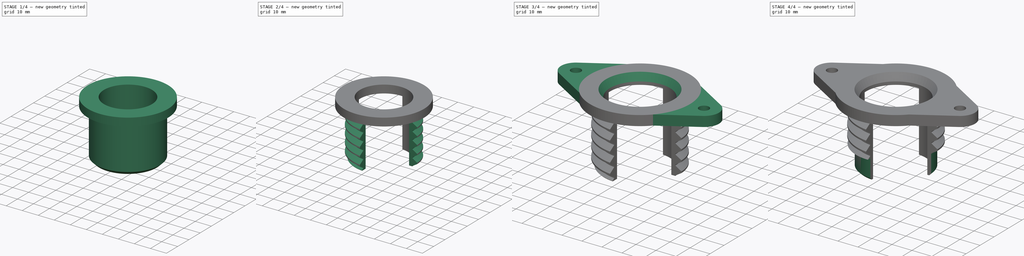
[diagram: build sequence overview — one tinted view per stage of 4, left to right]
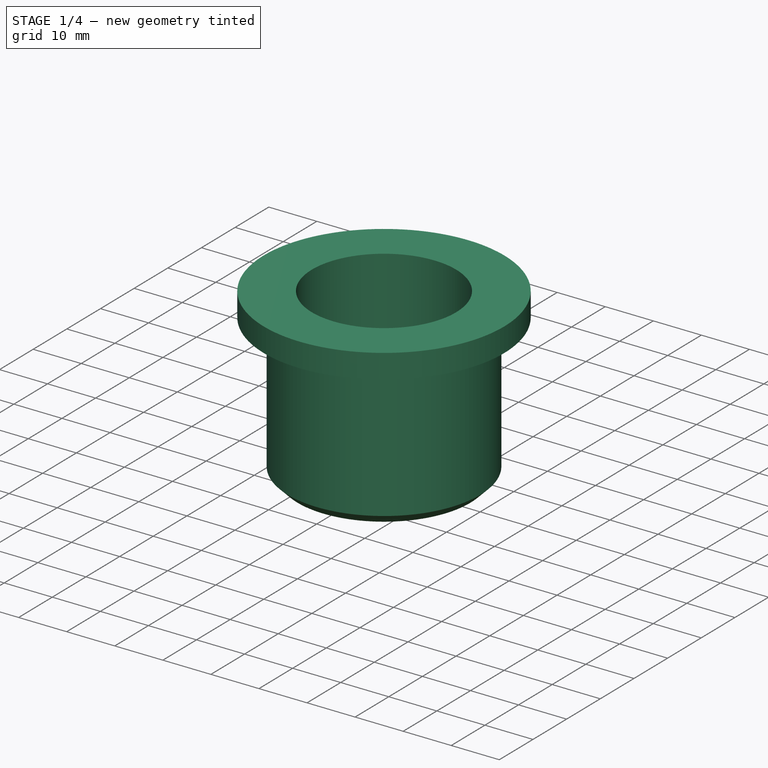
[diagram: stage 1 of 4 — iso view after this stage's code; geometry added in this stage tinted green]
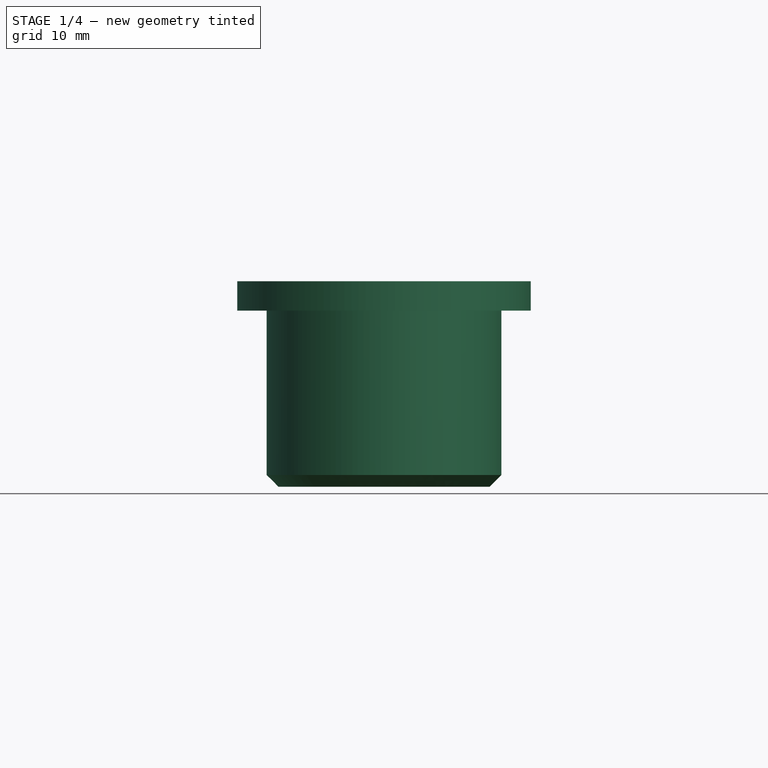
[diagram: stage 1 of 4 — front view after this stage's code; geometry added in this stage tinted green]
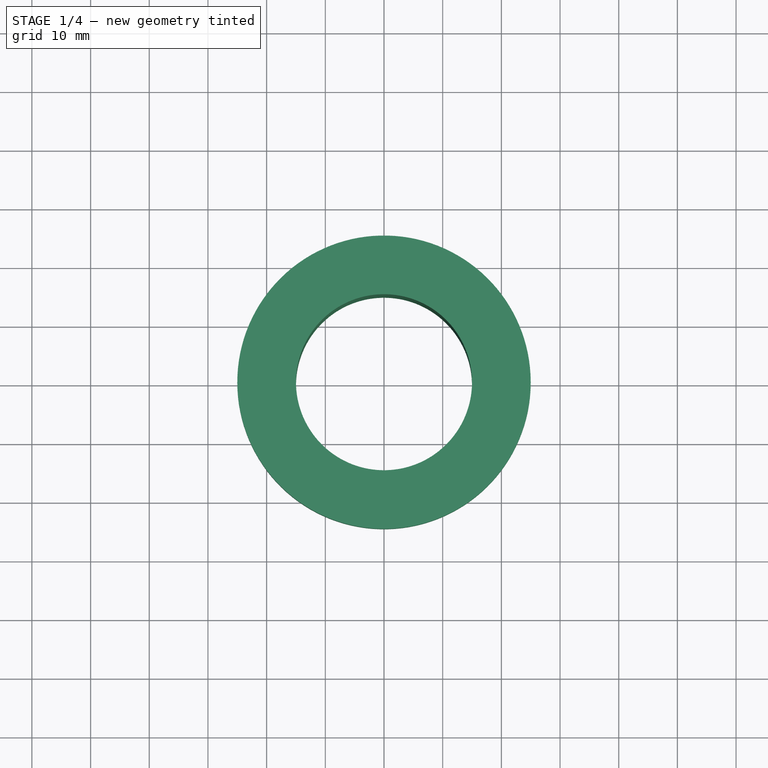
[diagram: stage 1 of 4 — top view after this stage's code; geometry added in this stage tinted green]
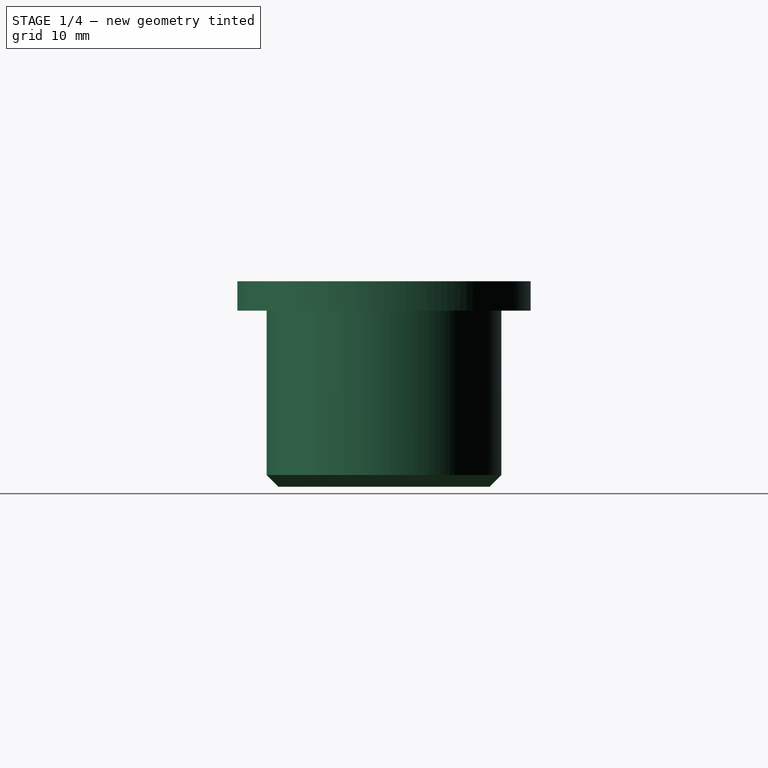
[diagram: stage 1 of 4 — right view after this stage's code; geometry added in this stage tinted green]
FCSTD DOCUMENT  (FreeCAD 2020.11.29R23076 +2859 (Git))
Label: noga-dol
License: All rights reserved
LicenseURL: http://en.wikipedia.org/wiki/All_rights_reserved
objects: Sketcher::SketchObject×6, PartDesign::Chamfer×3, PartDesign::Pocket×3, PartDesign::Revolution×1, Part::Helix×1, PartDesign::ShapeBinder×1, PartDesign::SubtractivePipe×1, PartDesign::PolarPattern×1, PartDesign::Pad×1, PartDesign::Body×1
note: 38 computed .brp shape members not serialized (recipe doc carries the construction recipe); baked Part::Feature solids carry a one-line shape summary decoded from their .brp

FEATURE [Sketcher::SketchObject] Sketch
  MapMode = 5
  Placement = pos=(0,0,0) rot=(1,0,0;1.5708rad)
  Support = -> [XZ_Plane]
  sketch-geometry (6):
    g0: LineSegment StartX=15 StartY=0 StartZ=0 EndX=25 EndY=0 EndZ=0
    g1: LineSegment StartX=25 StartY=0 StartZ=0 EndX=25 EndY=-5 EndZ=0
    g2: LineSegment StartX=25 StartY=-5 StartZ=0 EndX=20 EndY=-5 EndZ=0
    g3: LineSegment StartX=20 StartY=-5 StartZ=0 EndX=20 EndY=-35 EndZ=0
    g4: LineSegment StartX=20 StartY=-35 StartZ=0 EndX=15 EndY=-35 EndZ=0
    g5: LineSegment StartX=15 StartY=-35 StartZ=0 EndX=15 EndY=0 EndZ=0
  constraints (18):
    c: Horizontal(g0)
    c: Coincident(g0,g1)
    c: Coincident(g1,g2)
    c: Coincident(g2,g3)
    c: Vertical(g3)
    c: Coincident(g3,g4)
    c: Horizontal(g4)
    c: Coincident(g4,g5)
    c: Vertical(g5)
    c: Coincident(g0,g5)
    c: DistanceX(g0) = 15
    c: DistanceX(g0) = 25
    c: Vertical(g1)
    c: DistanceX(g2) = 20
    c: Horizontal(g2)
    c: DistanceY(g2) = -5
    c: DistanceY(g4) = -35
    c: PointOnObject(g0,g-1)
FEATURE [PartDesign::Revolution] Revolution
  Angle = 360
  Axis = (0,-2e-16,1)
  Base = (0,0,0)
  ClaimChildren = false
  Fit = 0
  FitJoin = 0
  InnerFit = 0
  InnerFitJoin = 0
  NewSolid = false
  Placement = pos=(0,0,0) rot=(1,0,0;1.5708rad)
  Profile = -> Sketch
  ReferenceAxis = -> Sketch [V_Axis]
  Reversed = true
  Suppress = false
FEATURE [Part::Helix] Helix  label="Helisa"
  Angle = 0
  AttacherType = Attacher::AttachEngine3D
  Height = 35
  LocalCoord = 1
  Pitch = 5
  Placement = pos=(0,0,-40) rot=(0,0,1;0rad)
  Radius = 20
  Style = 1
FEATURE [Sketcher::SketchObject] Sketch001
  MapMode = 5
  Placement = pos=(0,0,0) rot=(1,0,0;1.5708rad)
  Support = -> [XZ_Plane]
  sketch-geometry (5):
    g0: LineSegment StartX=20.2 StartY=-22.75 StartZ=0 EndX=17 EndY=-24.75 EndZ=0
    g1: LineSegment StartX=17 StartY=-25.25 StartZ=0 EndX=20.2 EndY=-27.25 EndZ=0
    g2: LineSegment StartX=20.2 StartY=-27.25 StartZ=0 EndX=20.2 EndY=-22.75 EndZ=0
    g3: LineSegment StartX=17 StartY=-24.75 StartZ=0 EndX=17 EndY=-25.25 EndZ=0
    g4: GeomPoint X=17 Y=-25 Z=0
  constraints (14):
    c: Coincident(g1,g2)
    c: Coincident(g2,g0)
    c: Vertical(g2)
    c: Equal(g0,g1)
    c: DistanceX(g0) = 20.2
    c: DistanceY(g2,g2) = 4.5
    c: Vertical(g3)
    c: Coincident(g0,g3)
    c: Coincident(g1,g3)
    c: DistanceY(g3,g3) = 0.5
    c: PointOnObject(g4,g3)
    c: DistanceY(g4,g0) = 0.25
    c: DistanceX(g4) = 17
    c: DistanceY(g4) = -25
FEATURE [PartDesign::ShapeBinder] ReferenceHelix
  Placement = pos=(0,0,-40) rot=(0,0,1;0rad)
  Support = -> [Helix]
  TraceSupport = false
FEATURE [PartDesign::Chamfer] Chamfer
  Angle = 45
  Base = -> Revolution [Edge6]
  BaseFeature = -> Revolution
  ChamferType = 0
  FlipDirection = false
  NewSolid = false
  Placement = pos=(0,0,0) rot=(1,0,0;1.5708rad)
  Size = 2
  Size2 = 1
  SupportTransform = false
  Suppress = false
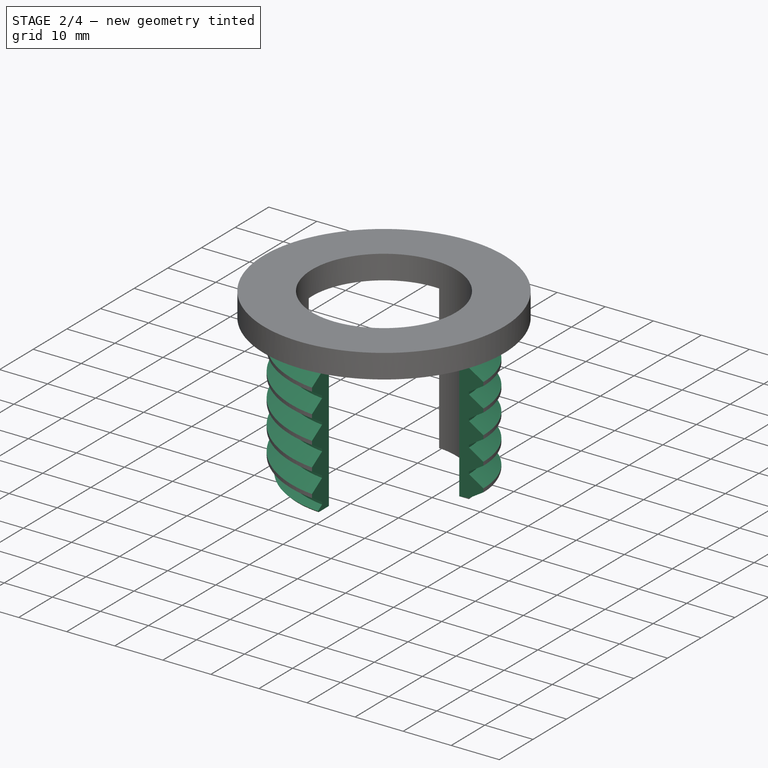
[diagram: stage 2 of 4 — iso view after this stage's code; geometry added in this stage tinted green]
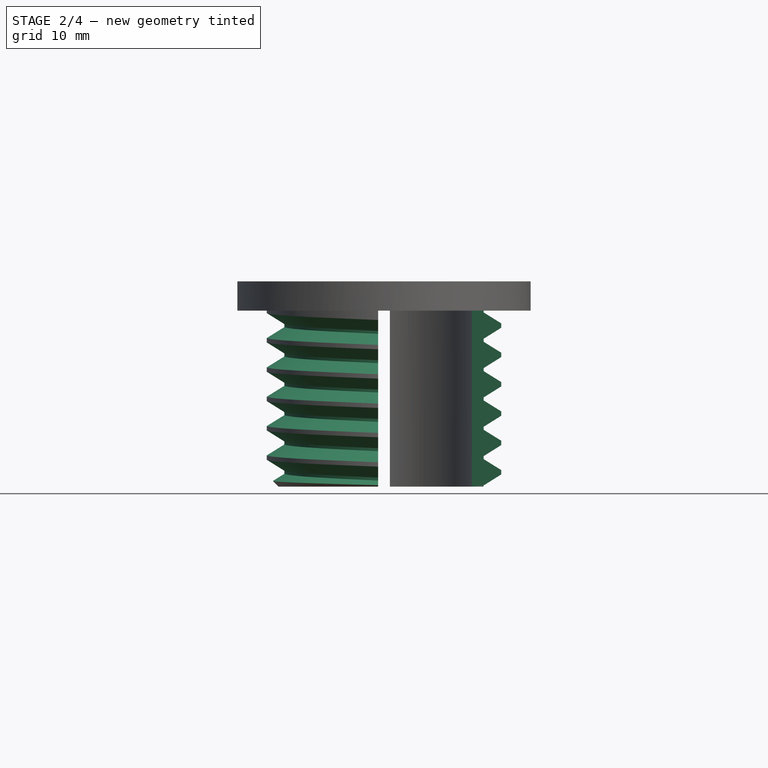
[diagram: stage 2 of 4 — front view after this stage's code; geometry added in this stage tinted green]
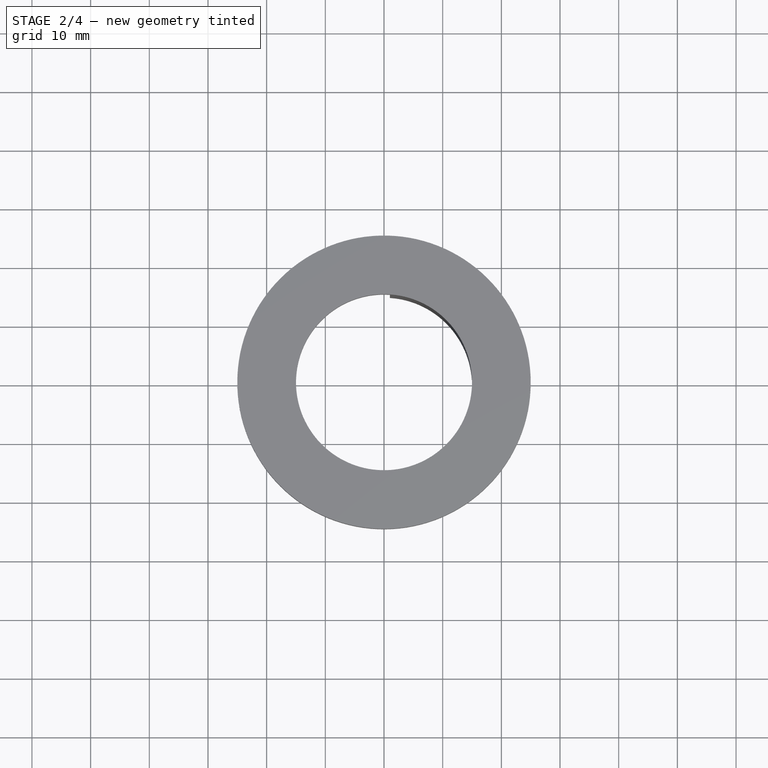
[diagram: stage 2 of 4 — top view after this stage's code; geometry added in this stage tinted green]
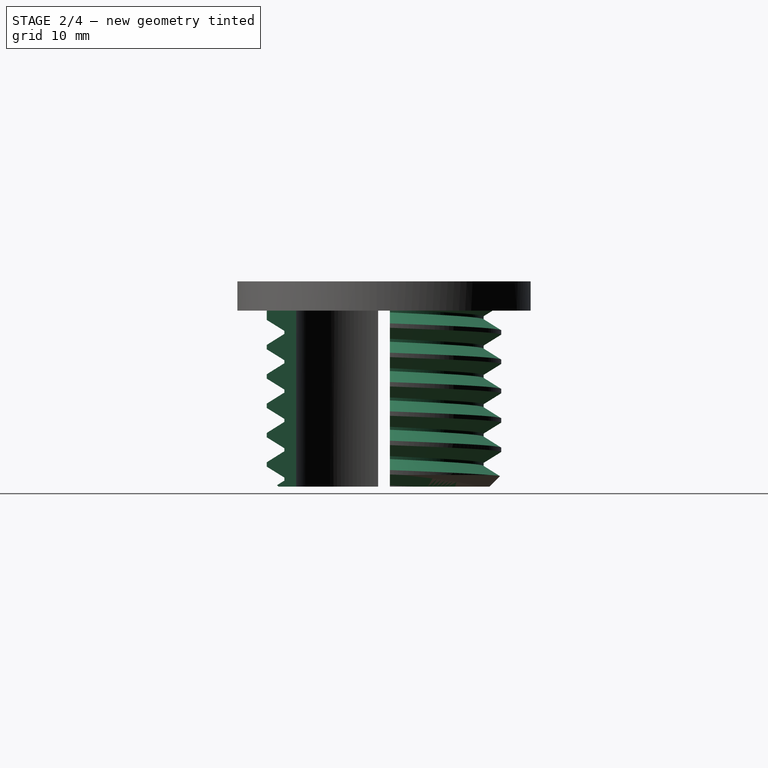
[diagram: stage 2 of 4 — right view after this stage's code; geometry added in this stage tinted green]
FEATURE [PartDesign::SubtractivePipe] SubtractivePipe
  AuxilleryCurvelinear = true
  AuxillerySpineTangent = false
  BaseFeature = -> Chamfer
  Binormal = (0,0,0)
  ClaimChildren = false
  Fit = 0
  FitJoin = 0
  InnerFit = 0
  InnerFitJoin = 0
  Mode = 2
  NewSolid = false
  Placement = pos=(0,0,0) rot=(1,0,0;1.5708rad)
  Profile = -> Sketch001
  Spine = -> ReferenceHelix
  SpineTangent = false
  Suppress = false
  Transformation = 0
  Transition = 0
FEATURE [Sketcher::SketchObject] Sketch002
  MapMode = 5
  Placement = pos=(0,0,-35) rot=(1,0,0;3.14159rad)
  Support = -> [SubtractivePipe]
  sketch-geometry (4):
    g0: LineSegment StartX=-1 StartY=-1 StartZ=0 EndX=29 EndY=-1 EndZ=0
    g1: LineSegment StartX=29 StartY=-1 StartZ=0 EndX=29 EndY=29 EndZ=0
    g2: LineSegment StartX=29 StartY=29 StartZ=0 EndX=-1 EndY=29 EndZ=0
    g3: LineSegment StartX=-1 StartY=29 StartZ=0 EndX=-1 EndY=-1 EndZ=0
  constraints (12):
    c: Coincident(g0,g1)
    c: Coincident(g1,g2)
    c: Coincident(g2,g3)
    c: Coincident(g3,g0)
    c: Horizontal(g0)
    c: Horizontal(g2)
    c: Vertical(g1)
    c: Vertical(g3)
    c: DistanceX(g0) = -1
    c: DistanceY(g0) = -1
    c: DistanceX(g0,g0) = 30
    c: DistanceY(g1,g1) = 30
FEATURE [PartDesign::Pocket] Pocket
  BaseFeature = -> SubtractivePipe
  ClaimChildren = false
  Fit = 0
  FitJoin = 0
  InnerFit = 0
  InnerFitJoin = 0
  InnerTaperAngle = 0
  InnerTaperAngleRev = 0
  Length = 30
  Length2 = 100
  NewSolid = false
  Placement = pos=(0,0,0) rot=(1,0,0;1.5708rad)
  Profile = -> Sketch002
  Suppress = false
  Type = 0
FEATURE [PartDesign::PolarPattern] PolarPattern
  Angle = 360
  Axis = -> Z_Axis
  BaseFeature = -> Pocket
  CopyShape = false
  NewSolid = false
  Occurrences = 2
  Placement = pos=(0,0,0) rot=(1,0,0;1.5708rad)
  SubTransform = true
  Suppress = false
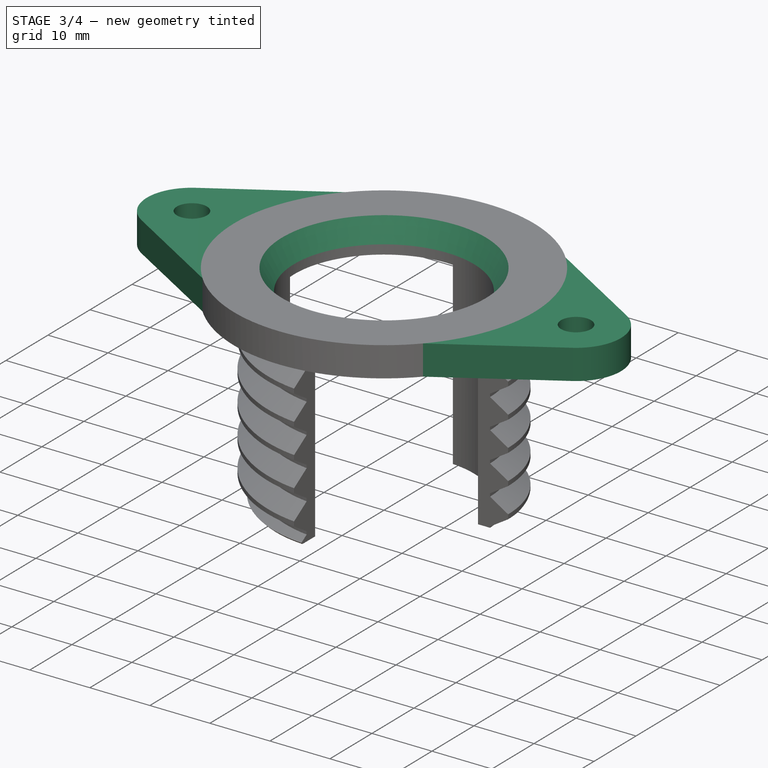
[diagram: stage 3 of 4 — iso view after this stage's code; geometry added in this stage tinted green]
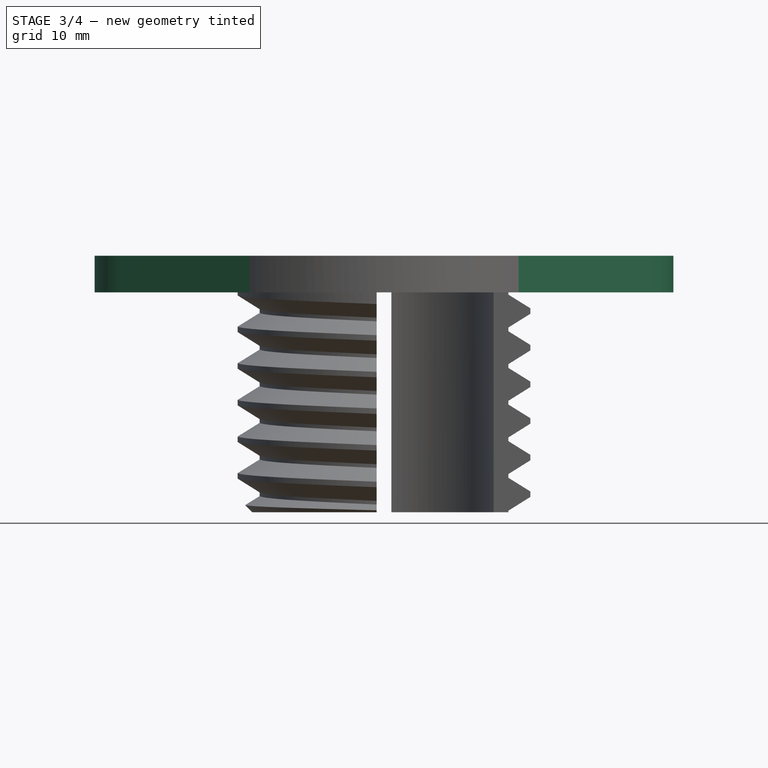
[diagram: stage 3 of 4 — front view after this stage's code; geometry added in this stage tinted green]
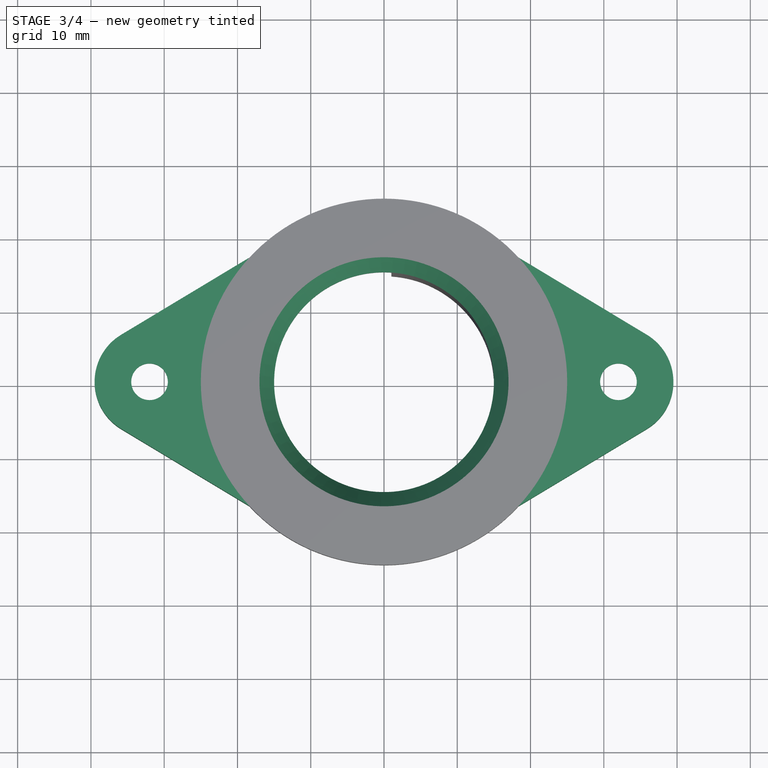
[diagram: stage 3 of 4 — top view after this stage's code; geometry added in this stage tinted green]
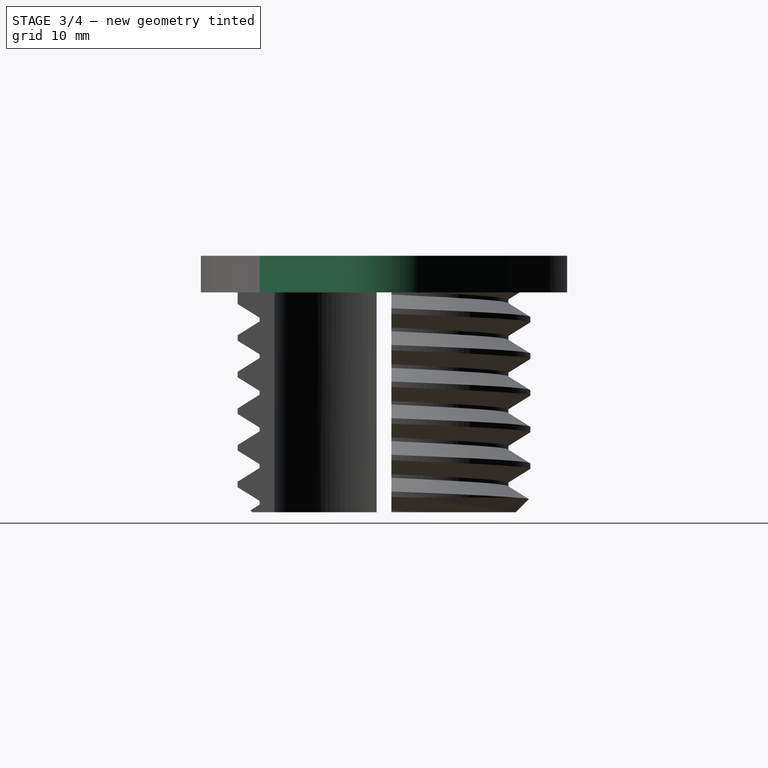
[diagram: stage 3 of 4 — right view after this stage's code; geometry added in this stage tinted green]
FEATURE [Sketcher::SketchObject] Sketch003
  MapMode = 5
  Placement = pos=(0,0,0) rot=(0,0,1;3.14159rad)
  Support = -> [PolarPattern]
  sketch-geometry (11):
    g0: ArcOfCircle CenterX=0 CenterY=0 CenterZ=0 NormalX=0 NormalY=0 NormalZ=1 AngleXU=0 Radius=24 StartAngle=1.02906 EndAngle=2.11253
    g1: ArcOfCircle CenterX=-32 CenterY=0 CenterZ=0 NormalX=0 NormalY=0 NormalZ=1 AngleXU=0 Radius=7.5 StartAngle=2.11253 EndAngle=4.17065
    g2: Circle CenterX=-32 CenterY=0 CenterZ=0 NormalX=0 NormalY=0 NormalZ=1 AngleXU=0 Radius=2.5
    g3: Circle CenterX=32 CenterY=0 CenterZ=0 NormalX=0 NormalY=0 NormalZ=1 AngleXU=0 Radius=2.5
    g4: LineSegment StartX=-35.8672 StartY=6.42612 StartZ=0 EndX=-12.375 EndY=20.5636 EndZ=0
    g5: LineSegment StartX=-35.8672 StartY=-6.42612 StartZ=0 EndX=-12.375 EndY=-20.5636 EndZ=0
    g6: LineSegment StartX=35.8672 StartY=6.42611 StartZ=0 EndX=12.375 EndY=20.5636 EndZ=0
    g7: LineSegment StartX=35.8672 StartY=-6.42611 StartZ=0 EndX=12.375 EndY=-20.5636 EndZ=0
    g8: ArcOfCircle CenterX=0 CenterY=0 CenterZ=0 NormalX=0 NormalY=0 NormalZ=1 AngleXU=0 Radius=24 StartAngle=4.17065 EndAngle=5.25412
    g9: ArcOfCircle CenterX=32 CenterY=0 CenterZ=0 NormalX=0 NormalY=0 NormalZ=1 AngleXU=0 Radius=7.5 StartAngle=5.25413 EndAngle=7.31224
    g10: Circle CenterX=0 CenterY=0 CenterZ=0 NormalX=0 NormalY=0 NormalZ=1 AngleXU=0 Radius=21
  constraints (29):
    c: Coincident(g0,g-1)
    c: Diameter(g0) = 48
    c: PointOnObject(g1,g-1)
    c: Coincident(g2,g1)
    c: Symmetric(g1,g3,g-2)
    c: DistanceX(g1) = -32
    c: Diameter(g3) = 5
    c: Tangent(g4,g0)
    c: Tangent(g7,g0)
    c: Tangent(g0,g5)
    c: Tangent(g6,g0)
    c: Tangent(g1,g4)
    c: Tangent(g5,g1)
    c: Equal(g3,g2)
    c: Coincident(g0,g6)
    c: Coincident(g8,g7)
    c: Coincident(g8,g5)
    c: Coincident(g0,g8)
    c: Coincident(g0,g4)
    c: Coincident(g1,g4)
    c: Coincident(g1,g5)
    c: Coincident(g9,g3)
    c: Tangent(g9,g7) = 1.5708
    c: Tangent(g9,g6) = -1.5708
    c: Radius(g9) = 7.5
    c: Equal(g1,g9)
    c: Equal(g8,g0)
    c: Coincident(g10,g0)
    c: Diameter(g10) = 42
FEATURE [PartDesign::Pad] Pad
  BaseFeature = -> PolarPattern
  ClaimChildren = false
  Direction = (1,1,1)
  Fit = 0
  FitJoin = 0
  InnerFit = 0
  InnerFitJoin = 0
  InnerTaperAngle = 0
  InnerTaperAngleRev = 0
  Length = 5
  Length2 = 100
  NewSolid = false
  Placement = pos=(0,0,0) rot=(1,0,0;1.5708rad)
  Profile = -> Sketch003
  Reversed = true
  Suppress = false
  Type = 0
FEATURE [PartDesign::Chamfer] Chamfer001
  Angle = 60
  Base = -> Pad [Edge67]
  BaseFeature = -> Pad
  ChamferType = 2
  FlipDirection = true
  NewSolid = false
  Placement = pos=(0,0,0) rot=(1,0,0;1.5708rad)
  Size = 2
  Size2 = 1
  SupportTransform = false
  Suppress = false
FEATURE [Sketcher::SketchObject] Sketch004
  MapMode = 5
  Placement = pos=(0,0,-5) rot=(1,0,0;3.14159rad)
  Support = -> [Chamfer001]
  sketch-geometry (2):
    g0: Circle CenterX=-32 CenterY=0 CenterZ=0 NormalX=0 NormalY=0 NormalZ=1 AngleXU=0 Radius=5
    g1: Circle CenterX=32 CenterY=0 CenterZ=0 NormalX=0 NormalY=0 NormalZ=1 AngleXU=0 Radius=5
  constraints (6):
    c: PointOnObject(g0,g-1)
    c: PointOnObject(g1,g-1)
    c: DistanceX(g1) = 32
    c: DistanceX(g0) = -32
    c: Diameter(g0) = 10
    c: Equal(g1,g0)
FEATURE [PartDesign::Pocket] Pocket001
  BaseFeature = -> Chamfer001
  ClaimChildren = false
  Fit = 0
  FitJoin = 0
  InnerFit = 0
  InnerFitJoin = 0
  InnerTaperAngle = 0
  InnerTaperAngleRev = 0
  Length = 3
  Length2 = 100
  NewSolid = false
  Placement = pos=(0,0,0) rot=(1,0,0;1.5708rad)
  Profile = -> Sketch004
  Suppress = false
  Type = 0
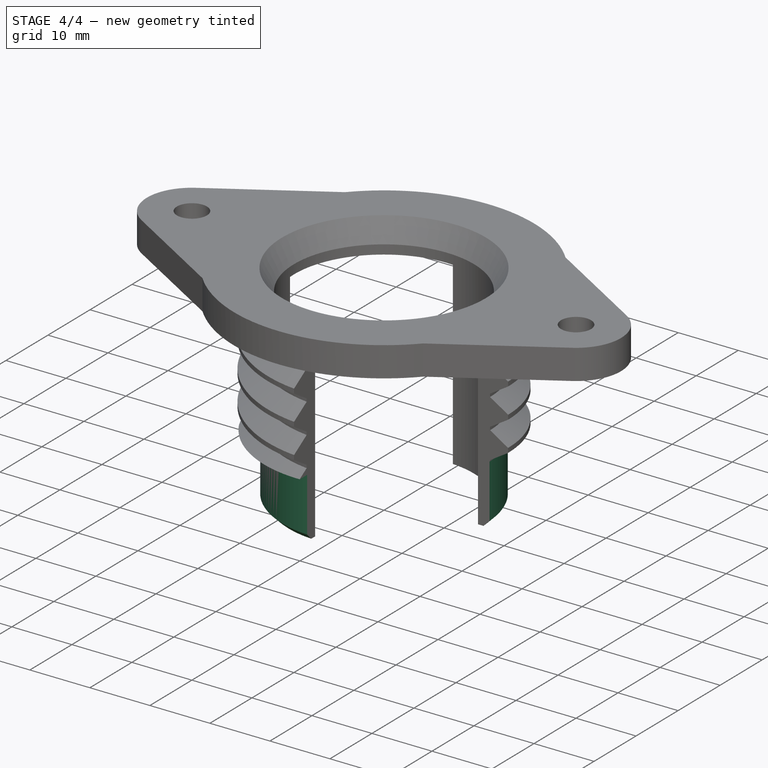
[diagram: stage 4 of 4 — iso view after this stage's code; geometry added in this stage tinted green]
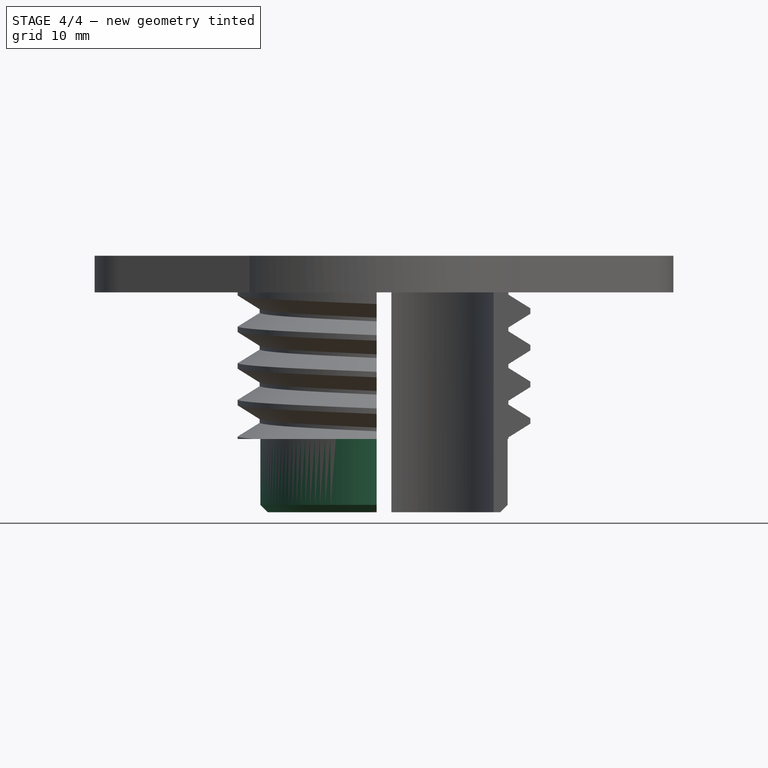
[diagram: stage 4 of 4 — front view after this stage's code; geometry added in this stage tinted green]
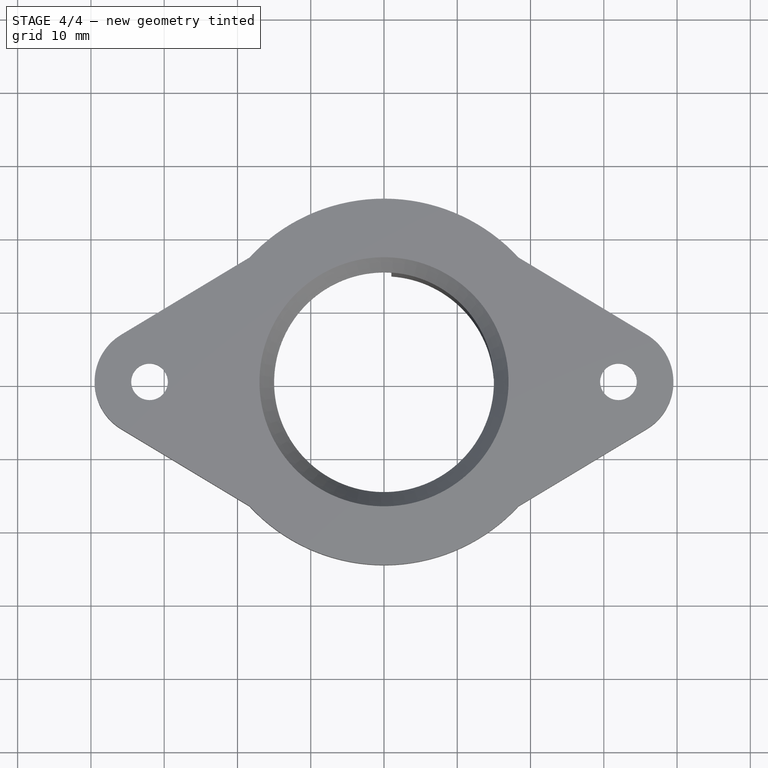
[diagram: stage 4 of 4 — top view after this stage's code; geometry added in this stage tinted green]
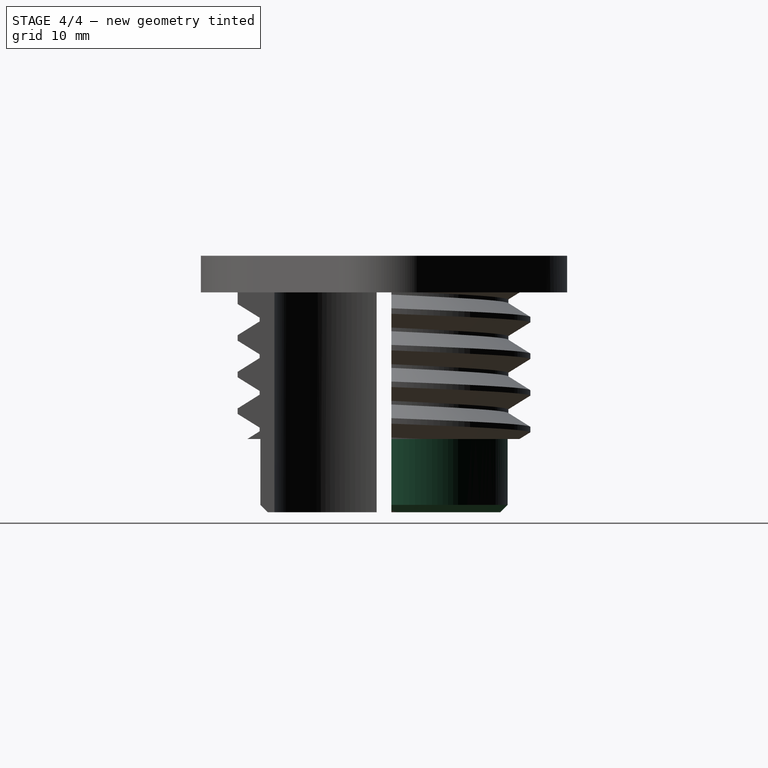
[diagram: stage 4 of 4 — right view after this stage's code; geometry added in this stage tinted green]
FEATURE [Sketcher::SketchObject] Sketch005
  MapMode = 5
  Placement = pos=(0,0,-35) rot=(1,0,0;3.14159rad)
  Support = -> [Pocket001]
  sketch-geometry (2):
    g0: Circle CenterX=0 CenterY=0 CenterZ=0 NormalX=0 NormalY=0 NormalZ=1 AngleXU=0 Radius=16.9
    g1: Circle CenterX=0 CenterY=0 CenterZ=0 NormalX=0 NormalY=0 NormalZ=1 AngleXU=0 Radius=25
  constraints (4):
    c: Coincident(g0,g-1)
    c: Coincident(g1,g0)
    c: Diameter(g0) = 33.8
    c: Diameter(g1) = 50
FEATURE [PartDesign::Pocket] Pocket002
  BaseFeature = -> Pocket001
  ClaimChildren = false
  Fit = 0
  FitJoin = 0
  InnerFit = 0
  InnerFitJoin = 0
  InnerTaperAngle = 0
  InnerTaperAngleRev = 0
  Length = 10
  Length2 = 100
  NewSolid = false
  Placement = pos=(0,0,0) rot=(1,0,0;1.5708rad)
  Profile = -> Sketch005
  Suppress = false
  Type = 0
FEATURE [PartDesign::Chamfer] Chamfer002
  Angle = 45
  Base = -> Pocket002 [Edge81,Edge39]
  BaseFeature = -> Pocket002
  ChamferType = 0
  FlipDirection = false
  NewSolid = false
  Placement = pos=(0,0,0) rot=(1,0,0;1.5708rad)
  Size = 1
  Size2 = 1
  SupportTransform = false
  Suppress = false
FEATURE [PartDesign::Body] Body  label="noga-dol"
  ExportMode = 0
  Group = -> [Sketch,Revolution,Sketch001,ReferenceHelix,Chamfer,SubtractivePipe,Sketch002,Pocket,PolarPattern,Sketch003,Pad,Chamfer001,Sketch004,Pocket001,Sketch005,Pocket002,Chamfer002]
  Origin = -> Origin
  Tip = -> Chamfer002
  _ExportChildren = -> [Revolution,Chamfer,SubtractivePipe,Pocket,PolarPattern,Pad,Chamfer001,Pocket001,Pocket002,Chamfer002]
  _GroupVersion = 1
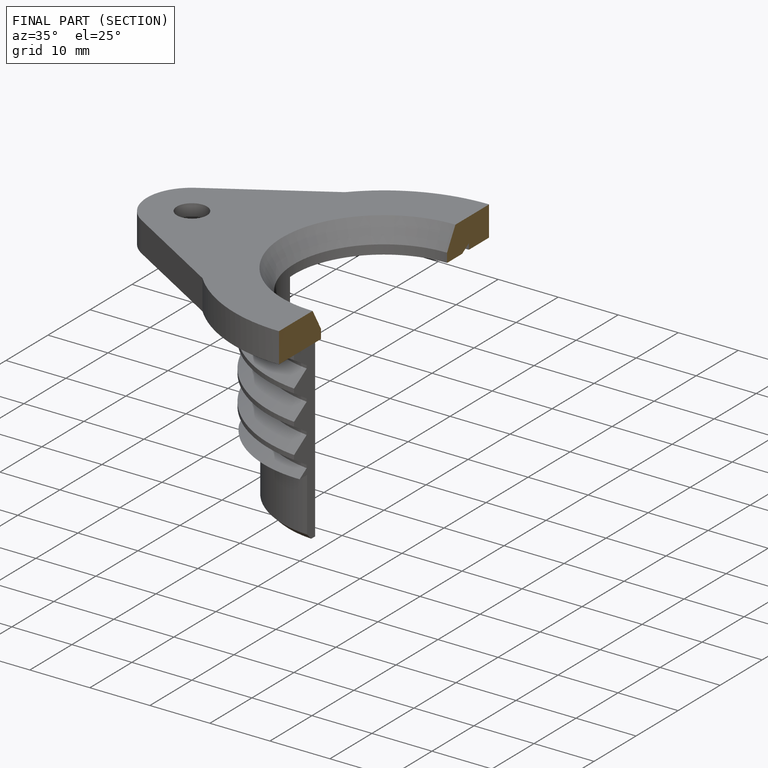
[diagram: finished part — half-section view (interior)]
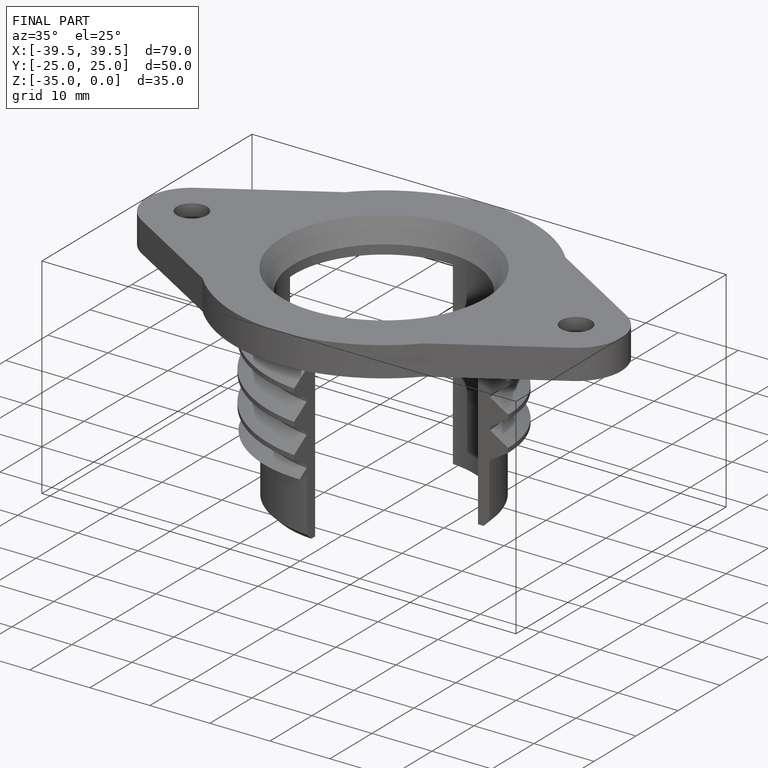
[diagram: finished part — iso view with bounding-box wireframe]
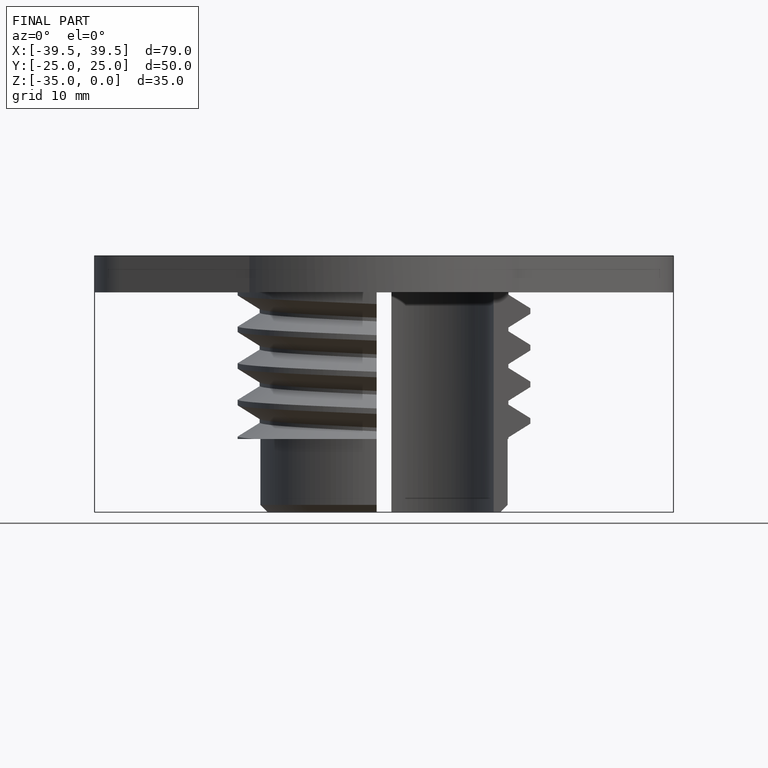
[diagram: finished part — front view with bounding-box wireframe]
